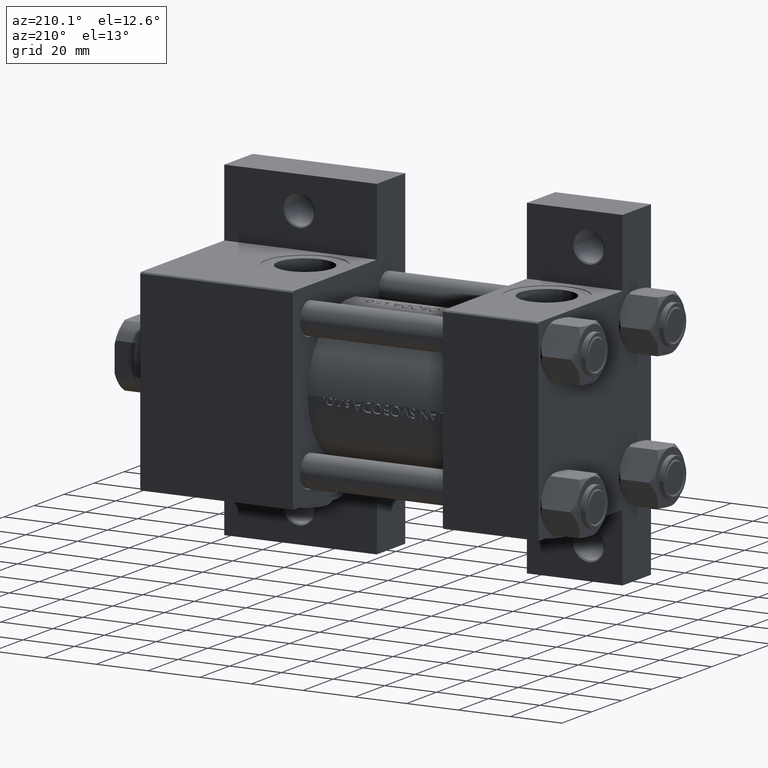
[diagram: clean part render]
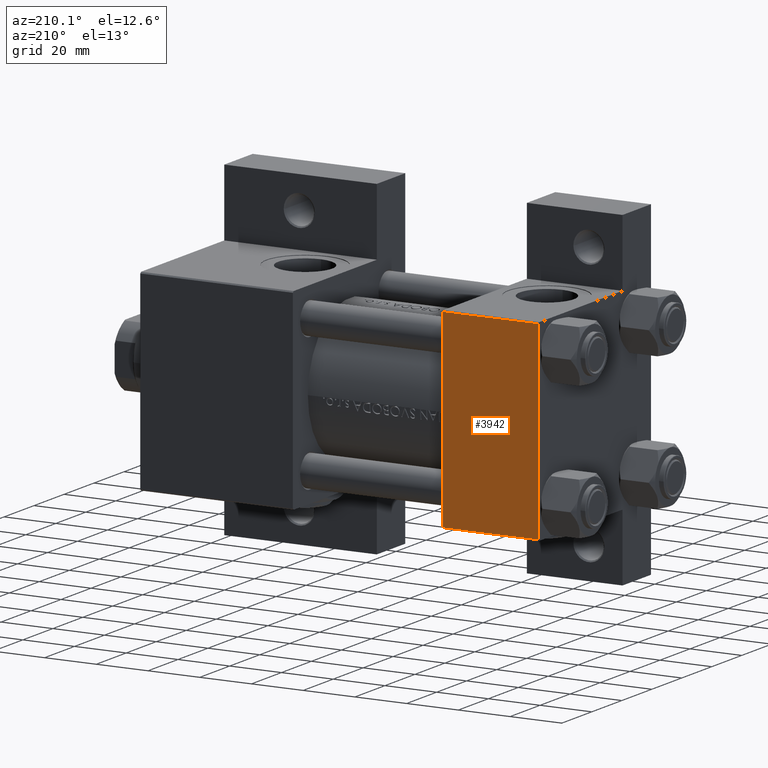
[diagram: same view with one face highlighted and labeled with its STEP entity id]
A machine part, auxiliary view. The second image highlights one B-rep face of the part: STEP entity #3942.
In plain terms, the highlighted planar face has unit normal (0, -1, -0).
Its self-contained STEP definition (entity closure, byte-faithful):
#3942 = ADVANCED_FACE ( 'NONE', ( #46009 ), #37508, .F. ) ;
#4558 = VECTOR ( 'NONE', #40746, 1000.000000000000000 ) ;
#8695 = VECTOR ( 'NONE', #30390, 1000.000000000000000 ) ;
#9696 = LINE ( 'NONE', #36497, #4558 ) ;
#11107 = LINE ( 'NONE', #41417, #13236 ) ;
#11355 = DIRECTION ( 'NONE',  ( 0.000000000000000000, -1.000000000000000000, -9.251858538542971581E-17 ) ) ;
#12347 = CARTESIAN_POINT ( 'NONE',  ( 37.00000000000000000, 37.49999999999999289, 37.50000000000000000 ) ) ;
#13236 = VECTOR ( 'NONE', #11355, 1000.000000000000000 ) ;
#14692 = ORIENTED_EDGE ( 'NONE', *, *, #45852, .F. ) ;
#15388 = ORIENTED_EDGE ( 'NONE', *, *, #22488, .T. ) ;
#15613 = DIRECTION ( 'NONE',  ( 0.000000000000000000, -1.000000000000000000, -9.251858538542971581E-17 ) ) ;
#16131 = VERTEX_POINT ( 'NONE', #32478 ) ;
#18454 = DIRECTION ( 'NONE',  ( 0.000000000000000000, 9.251858538542971581E-17, -1.000000000000000000 ) ) ;
#20776 = VECTOR ( 'NONE', #15613, 1000.000000000000000 ) ;
#22488 = EDGE_CURVE ( 'NONE', #42001, #30273, #33894, .T. ) ;
#28470 = CARTESIAN_POINT ( 'NONE',  ( 0.000000000000000000, 36.99999999999999289, 37.50000000000000000 ) ) ;
#30273 = VERTEX_POINT ( 'NONE', #37523 ) ;
#30390 = DIRECTION ( 'NONE',  ( 1.000000000000000000, 0.000000000000000000, 0.000000000000000000 ) ) ;
#30727 = DIRECTION ( 'NONE',  ( 0.000000000000000000, 1.000000000000000000, 9.251858538542971581E-17 ) ) ;
#32478 = CARTESIAN_POINT ( 'NONE',  ( 37.00000000000000000, 36.99999999999999289, 37.50000000000000000 ) ) ;
#33894 = LINE ( 'NONE', #34148, #8695 ) ;
#34148 = CARTESIAN_POINT ( 'NONE',  ( 37.00000000000000000, -37.00000000000000711, 37.49999999999999289 ) ) ;
#34469 = CARTESIAN_POINT ( 'NONE',  ( 37.00000000000000000, 37.49999999999999289, 37.50000000000000000 ) ) ;
#36497 = CARTESIAN_POINT ( 'NONE',  ( 0.000000000000000000, 36.99999999999999289, 37.50000000000000000 ) ) ;
#37508 = PLANE ( 'NONE',  #45882 ) ;
#37523 = CARTESIAN_POINT ( 'NONE',  ( 37.00000000000000000, -37.00000000000000711, 37.49999999999999289 ) ) ;
#38970 = EDGE_CURVE ( 'NONE', #44152, #42001, #11107, .T. ) ;
#40746 = DIRECTION ( 'NONE',  ( -1.000000000000000000, 0.000000000000000000, 0.000000000000000000 ) ) ;
#41417 = CARTESIAN_POINT ( 'NONE',  ( 0.000000000000000000, 37.49999999999999289, 37.50000000000000000 ) ) ;
#42001 = VERTEX_POINT ( 'NONE', #48829 ) ;
#42199 = EDGE_CURVE ( 'NONE', #16131, #44152, #9696, .T. ) ;
#44152 = VERTEX_POINT ( 'NONE', #28470 ) ;
#45513 = ORIENTED_EDGE ( 'NONE', *, *, #38970, .T. ) ;
#45852 = EDGE_CURVE ( 'NONE', #16131, #30273, #46648, .T. ) ;
#45882 = AXIS2_PLACEMENT_3D ( 'NONE', #34469, #18454, #30727 ) ;
#46009 = FACE_OUTER_BOUND ( 'NONE', #46743, .T. ) ;
#46648 = LINE ( 'NONE', #12347, #20776 ) ;
#46743 = EDGE_LOOP ( 'NONE', ( #45513, #15388, #14692, #47311 ) ) ;
#47311 = ORIENTED_EDGE ( 'NONE', *, *, #42199, .T. ) ;
#48829 = CARTESIAN_POINT ( 'NONE',  ( 0.000000000000000000, -37.00000000000000711, 37.49999999999999289 ) ) ;